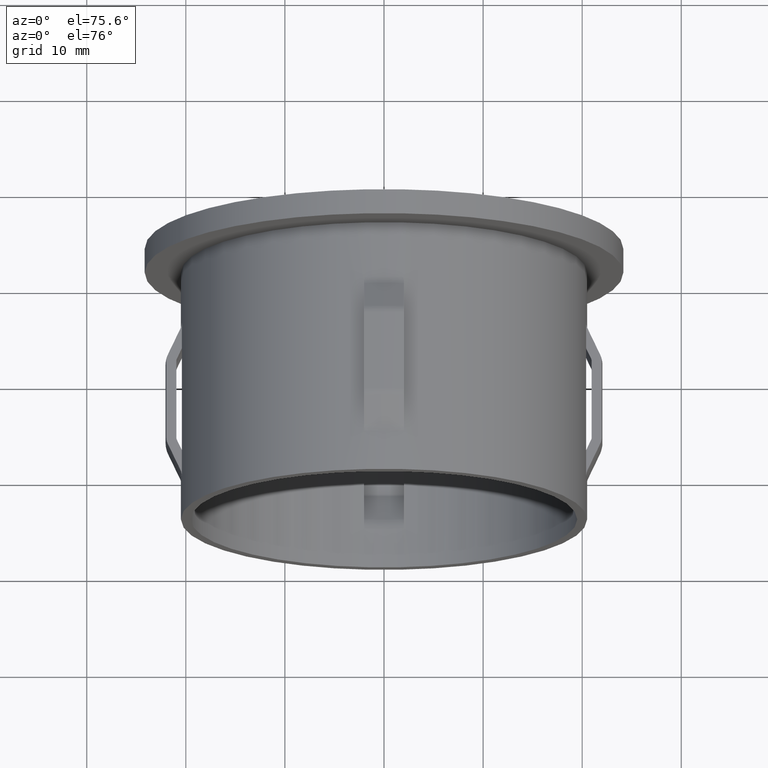
[diagram: clean part render]
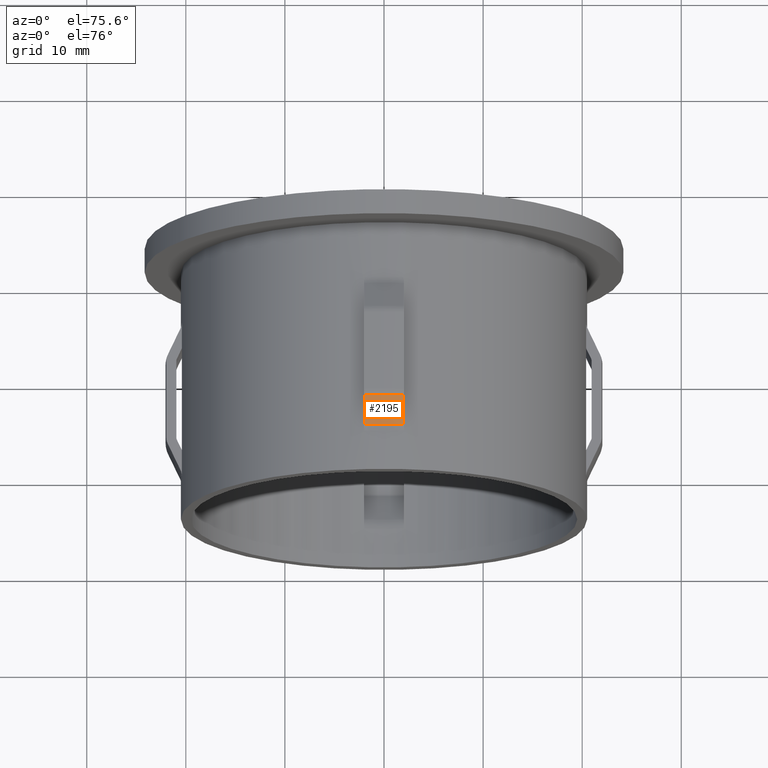
[diagram: same view with one face highlighted and labeled with its STEP entity id]
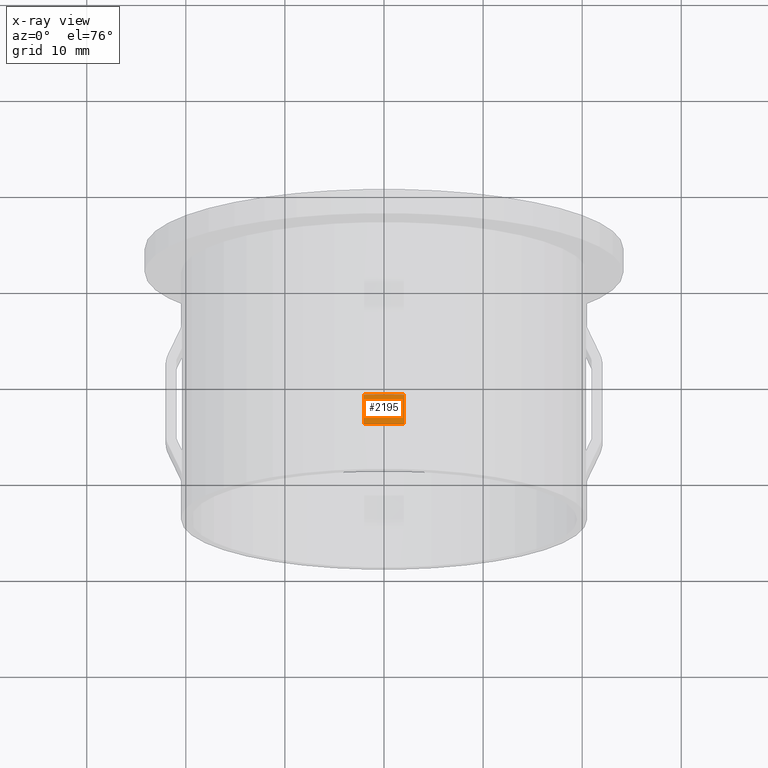
[diagram: x-ray of the same camera — body ghosted, the highlighted face saturated]
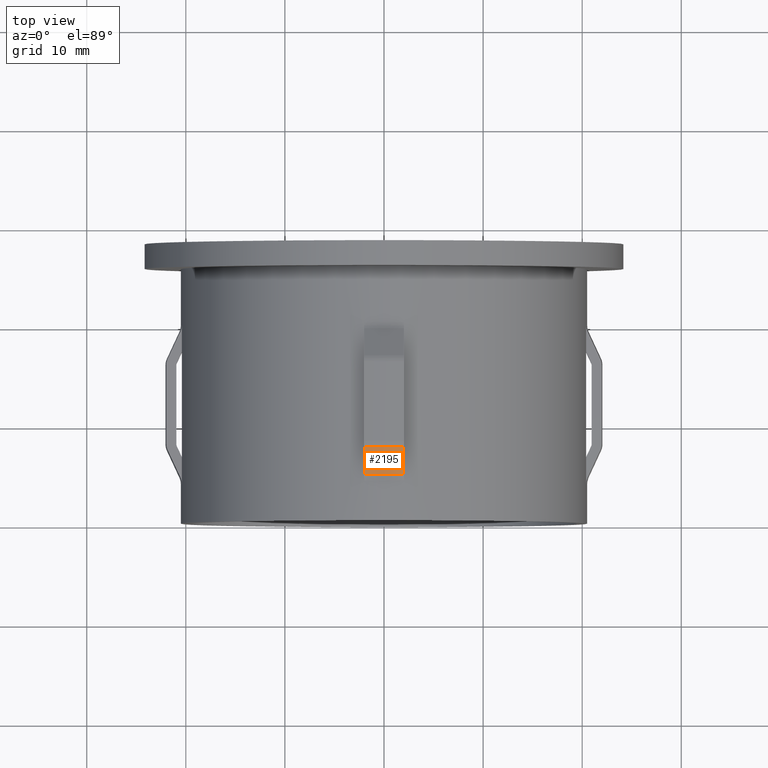
[diagram: same view with one face highlighted and labeled with its STEP entity id]
A machine part, auxiliary view. The second image highlights one B-rep face of the part: STEP entity #2195.
The next image is the same camera in x-ray: the body ghosted, the highlighted face saturated — about 0% of this face is hidden behind the body in this view.
A second angle (top view) of the same face is appended — the face is thin or edge-on in the first view.
In plain terms, the highlighted conical surface has half-angle 24.912 deg.
Its self-contained STEP definition (entity closure, byte-faithful):
#465 = FACE_OUTER_BOUND ( 'NONE', #9457, .T. ) ;
#514 = CARTESIAN_POINT ( 'NONE',  ( -1.999999999999996200, 4.879594404472018500, 20.65804681359365000 ) ) ;
#769 = DIRECTION ( 'NONE',  ( -1.714505518806297100E-016, 1.000000000000000000, -0.0000000000000000000 ) ) ;
#817 = DIRECTION ( 'NONE',  ( -1.000000000000000000, -1.680968736714618500E-016, 0.0000000000000000000 ) ) ;
#916 = EDGE_CURVE ( 'NONE', #15761, #1851, #8357, .T. ) ;
#1358 = DIRECTION ( 'NONE',  ( -1.714505518806297100E-016, 1.000000000000000000, -0.0000000000000000000 ) ) ;
#1851 = VERTEX_POINT ( 'NONE', #10323 ) ;
#1968 = CARTESIAN_POINT ( 'NONE',  ( -1.999999999999996200, 5.003471096762877900, 20.71584805443751500 ) ) ;
#2195 = ADVANCED_FACE ( 'NONE', ( #465 ), #6045, .T. ) ;
#2709 = CARTESIAN_POINT ( 'NONE',  ( 2.000000000000004900, 5.791666624738636100, 21.08362248158814400 ) ) ;
#2882 = ORIENTED_EDGE ( 'NONE', *, *, #916, .F. ) ;
#3291 = VERTEX_POINT ( 'NONE', #4642 ) ;
#4000 = AXIS2_PLACEMENT_3D ( 'NONE', #5084, #16333, #13783 ) ;
#4336 = VERTEX_POINT ( 'NONE', #10926 ) ;
#4642 = CARTESIAN_POINT ( 'NONE',  ( 2.000000000000004900, 4.631843609663175900, 20.54243878174399600 ) ) ;
#5084 = CARTESIAN_POINT ( 'NONE',  ( 3.326701723738251600E-015, 7.368156390336815200, 0.0000000000000000000 ) ) ;
#5142 = AXIS2_PLACEMENT_3D ( 'NONE', #6478, #1358, #10277 ) ;
#5274 = CARTESIAN_POINT ( 'NONE',  ( 2.000000000000004900, 5.003471096762878800, 20.71584805443751500 ) ) ;
#5338 = ORIENTED_EDGE ( 'NONE', *, *, #6711, .T. ) ;
#6045 = CONICAL_SURFACE ( 'NONE', #12920, 20.63956857838117600, 0.4348000597357523100 ) ;
#6285 = CIRCLE ( 'NONE', #5142, 20.63956857838117600 ) ;
#6478 = CARTESIAN_POINT ( 'NONE',  ( 3.795844060102767100E-015, 4.631843609663177700, 0.0000000000000000000 ) ) ;
#6702 = CARTESIAN_POINT ( 'NONE',  ( 2.000000000000004900, 4.755718568135789000, 20.60024373827389300 ) ) ;
#6711 = EDGE_CURVE ( 'NONE', #3291, #4336, #7934, .T. ) ;
#7170 = CARTESIAN_POINT ( 'NONE',  ( -1.999999999999996200, 4.631843609663175900, 20.54243878174399600 ) ) ;
#7934 = B_SPLINE_CURVE_WITH_KNOTS ( 'NONE', 3,
 ( #11834, #6702, #9267, #5274, #2709, #8024, #9206 ),
 .UNSPECIFIED., .F., .F.,
 ( 4, 3, 4 ),
 ( 0.005748589872255116400, 0.006158684684933026300, 0.008768012514493477700 ),
 .UNSPECIFIED. ) ;
#8024 = CARTESIAN_POINT ( 'NONE',  ( 2.000000000000004900, 6.579896722732108600, 21.45132282661965600 ) ) ;
#8295 = CARTESIAN_POINT ( 'NONE',  ( -1.999999999999996200, 4.631843609663175900, 20.54243878174399600 ) ) ;
#8357 = B_SPLINE_CURVE_WITH_KNOTS ( 'NONE', 3,
 ( #8295, #10820, #514, #1968, #9409, #10713, #10882 ),
 .UNSPECIFIED., .F., .F.,
 ( 4, 3, 4 ),
 ( 0.005748589872255119800, 0.006158684684933029800, 0.008768012514493482900 ),
 .UNSPECIFIED. ) ;
#9206 = CARTESIAN_POINT ( 'NONE',  ( 2.000000000000004900, 7.368156390336815200, 21.81895976167198700 ) ) ;
#9267 = CARTESIAN_POINT ( 'NONE',  ( 2.000000000000004900, 4.879594404472019400, 20.65804681359365000 ) ) ;
#9409 = CARTESIAN_POINT ( 'NONE',  ( -1.999999999999996200, 5.791666624738636100, 21.08362248158814400 ) ) ;
#9429 = ORIENTED_EDGE ( 'NONE', *, *, #11536, .T. ) ;
#9457 = EDGE_LOOP ( 'NONE', ( #2882, #9429, #5338, #9822 ) ) ;
#9822 = ORIENTED_EDGE ( 'NONE', *, *, #15598, .F. ) ;
#10277 = DIRECTION ( 'NONE',  ( -1.000000000000000000, -1.680968736714618500E-016, 0.0000000000000000000 ) ) ;
#10323 = CARTESIAN_POINT ( 'NONE',  ( -1.999999999999995800, 7.368156390336815200, 21.81895976167198700 ) ) ;
#10713 = CARTESIAN_POINT ( 'NONE',  ( -1.999999999999995800, 6.579896722732109500, 21.45132282661965600 ) ) ;
#10820 = CARTESIAN_POINT ( 'NONE',  ( -1.999999999999996200, 4.755718568135789000, 20.60024373827389300 ) ) ;
#10882 = CARTESIAN_POINT ( 'NONE',  ( -1.999999999999995800, 7.368156390336815200, 21.81895976167198700 ) ) ;
#10926 = CARTESIAN_POINT ( 'NONE',  ( 2.000000000000004900, 7.368156390336815200, 21.81895976167198700 ) ) ;
#11536 = EDGE_CURVE ( 'NONE', #15761, #3291, #6285, .T. ) ;
#11834 = CARTESIAN_POINT ( 'NONE',  ( 2.000000000000004900, 4.631843609663175900, 20.54243878174399600 ) ) ;
#12193 = CARTESIAN_POINT ( 'NONE',  ( 3.795844060102767100E-015, 4.631843609663177700, 0.0000000000000000000 ) ) ;
#12665 = CIRCLE ( 'NONE', #4000, 21.91043142161882100 ) ;
#12920 = AXIS2_PLACEMENT_3D ( 'NONE', #12193, #769, #817 ) ;
#13783 = DIRECTION ( 'NONE',  ( -1.000000000000000000, -1.583468113973485200E-016, 0.0000000000000000000 ) ) ;
#15598 = EDGE_CURVE ( 'NONE', #1851, #4336, #12665, .T. ) ;
#15761 = VERTEX_POINT ( 'NONE', #7170 ) ;
#16333 = DIRECTION ( 'NONE',  ( -1.714505518806297100E-016, 1.000000000000000000, -0.0000000000000000000 ) ) ;